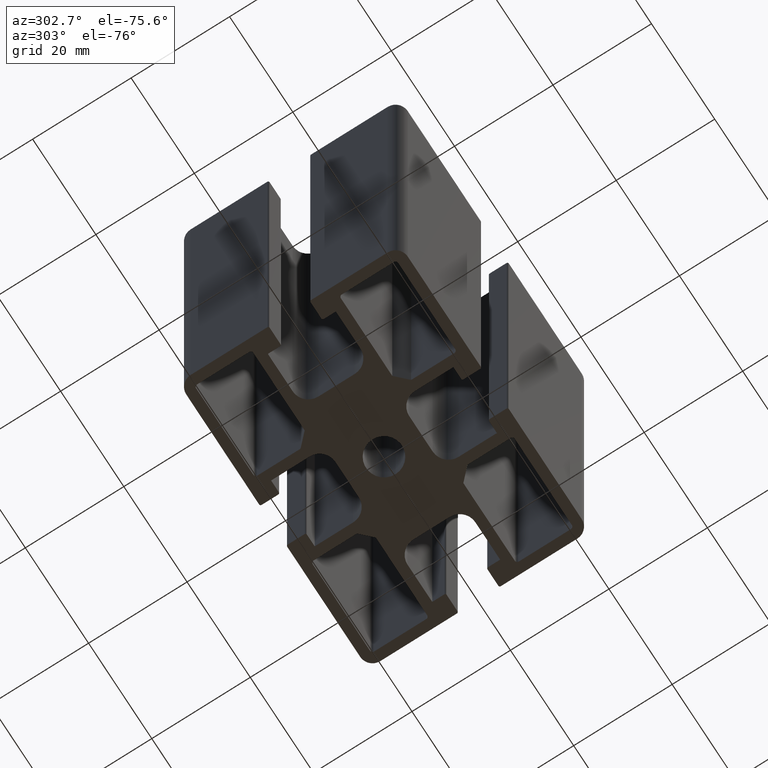
[diagram: clean part render]
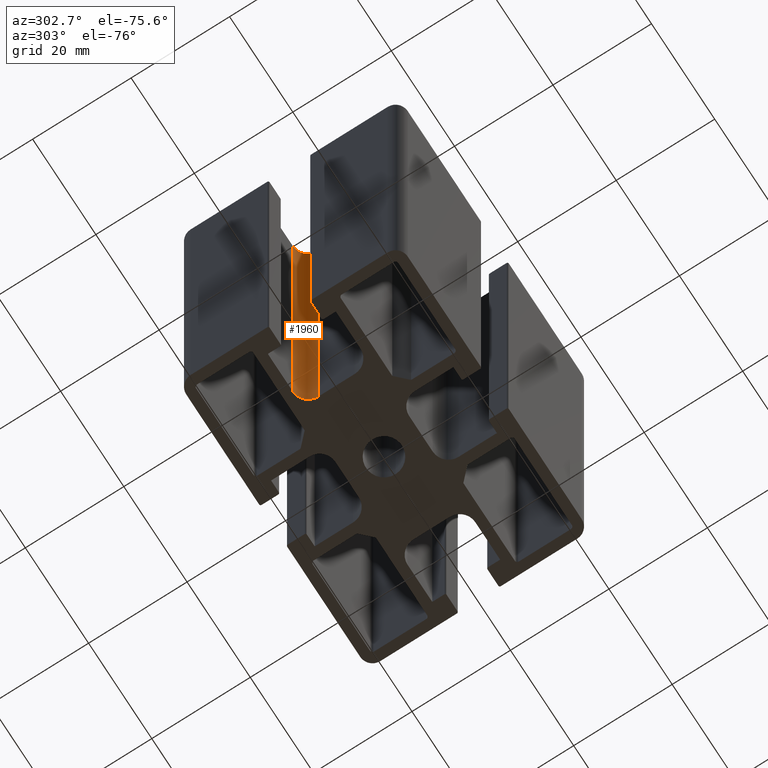
[diagram: same view with one face highlighted and labeled with its STEP entity id]
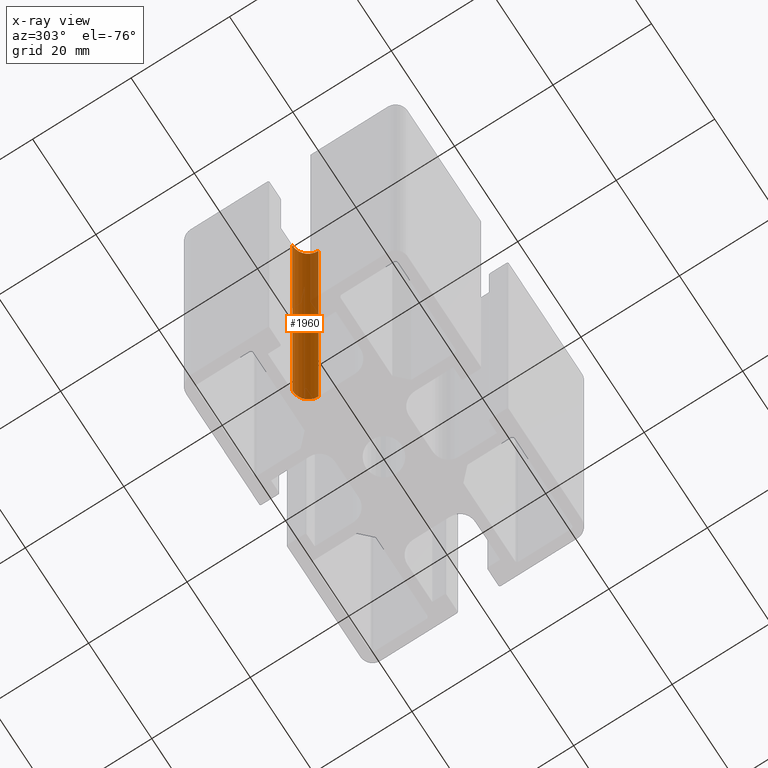
[diagram: x-ray of the same camera — body ghosted, the highlighted face saturated]
A machine part, auxiliary view. The second image highlights one B-rep face of the part: STEP entity #1960.
The next image is the same camera in x-ray: the body ghosted, the highlighted face saturated — about 12% of this face is hidden behind the body in this view.
In plain terms, the highlighted cylindrical surface (edge-blend (fillet) strip) has radius 3.2 mm, axis along (0, 0, 1).
Its self-contained STEP definition (entity closure, byte-faithful):
#65=CIRCLE('',#2070,3.20000000000002);
#93=CIRCLE('',#2129,3.20000000000002);
#134=CYLINDRICAL_SURFACE('',#2128,3.20000000000002);
#213=FACE_OUTER_BOUND('',#318,.T.);
#318=EDGE_LOOP('',(#1605,#1606,#1607,#1608));
#513=LINE('',#3198,#721);
#514=LINE('',#3202,#722);
#721=VECTOR('',#2597,100.);
#722=VECTOR('',#2602,100.);
#871=VERTEX_POINT('',#3010);
#872=VERTEX_POINT('',#3012);
#934=VERTEX_POINT('',#3196);
#935=VERTEX_POINT('',#3200);
#1097=EDGE_CURVE('',#871,#872,#65,.T.);
#1190=EDGE_CURVE('',#934,#871,#513,.T.);
#1191=EDGE_CURVE('',#935,#934,#93,.T.);
#1192=EDGE_CURVE('',#935,#872,#514,.T.);
#1605=ORIENTED_EDGE('',*,*,#1190,.F.);
#1606=ORIENTED_EDGE('',*,*,#1191,.F.);
#1607=ORIENTED_EDGE('',*,*,#1192,.T.);
#1608=ORIENTED_EDGE('',*,*,#1097,.F.);
#1960=ADVANCED_FACE('',(#213),#134,.F.);
#2070=AXIS2_PLACEMENT_3D('',#3013,#2416,#2417);
#2128=AXIS2_PLACEMENT_3D('',#3199,#2598,#2599);
#2129=AXIS2_PLACEMENT_3D('',#3201,#2600,#2601);
#2416=DIRECTION('center_axis',(0.,0.,1.));
#2417=DIRECTION('ref_axis',(1.,0.,0.));
#2597=DIRECTION('',(0.,0.,-1.));
#2598=DIRECTION('center_axis',(0.,0.,1.));
#2599=DIRECTION('ref_axis',(1.,0.,0.));
#2600=DIRECTION('center_axis',(0.,0.,-1.));
#2601=DIRECTION('ref_axis',(1.,0.,0.));
#2602=DIRECTION('',(0.,0.,-1.));
#3010=CARTESIAN_POINT('',(-14.9999999999994,3.69999999999976,-50.));
#3012=CARTESIAN_POINT('',(-18.1999999999994,6.89999999999984,-50.));
#3013=CARTESIAN_POINT('Origin',(-18.1999999999994,3.69999999999976,-50.));
#3196=CARTESIAN_POINT('',(-14.9999999999994,3.69999999999976,50.));
#3198=CARTESIAN_POINT('',(-14.9999999999994,3.69999999999976,0.));
#3199=CARTESIAN_POINT('Origin',(-18.1999999999994,3.69999999999976,0.));
#3200=CARTESIAN_POINT('',(-18.1999999999994,6.89999999999984,50.));
#3201=CARTESIAN_POINT('Origin',(-18.1999999999994,3.69999999999976,50.));
#3202=CARTESIAN_POINT('',(-18.1999999999994,6.89999999999984,0.));